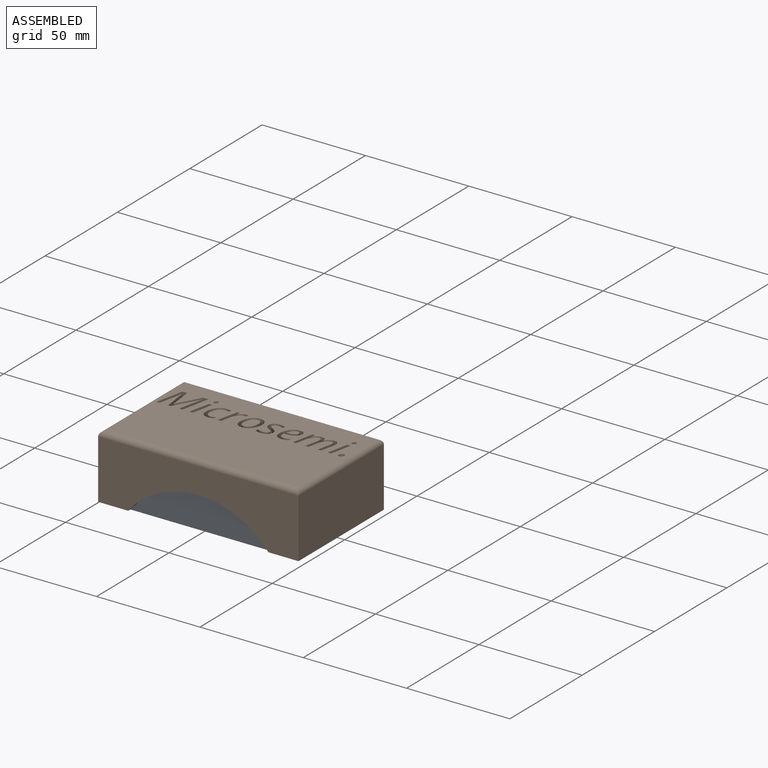
[diagram: assembled view]
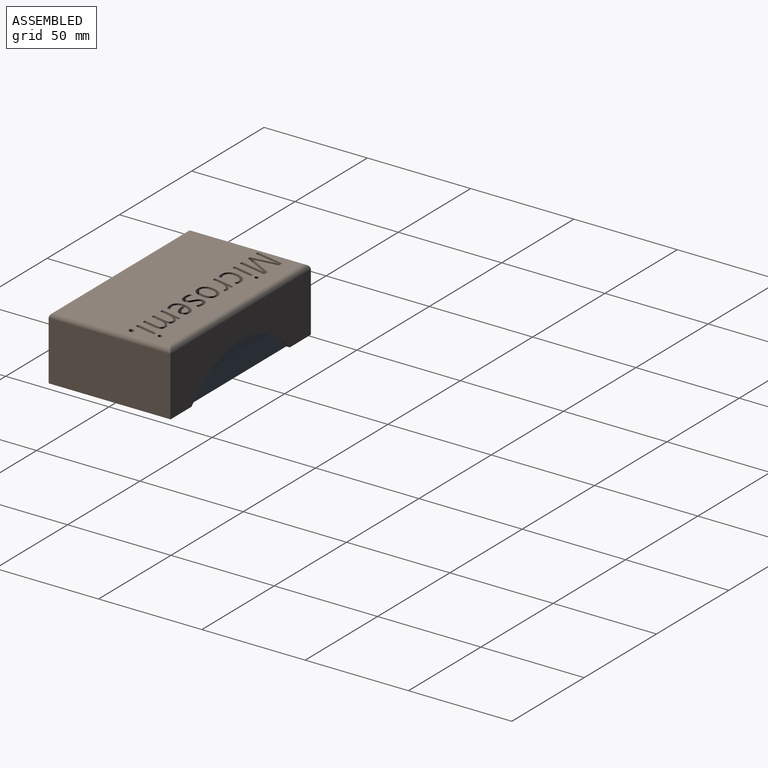
[diagram: assembled view, second angle]
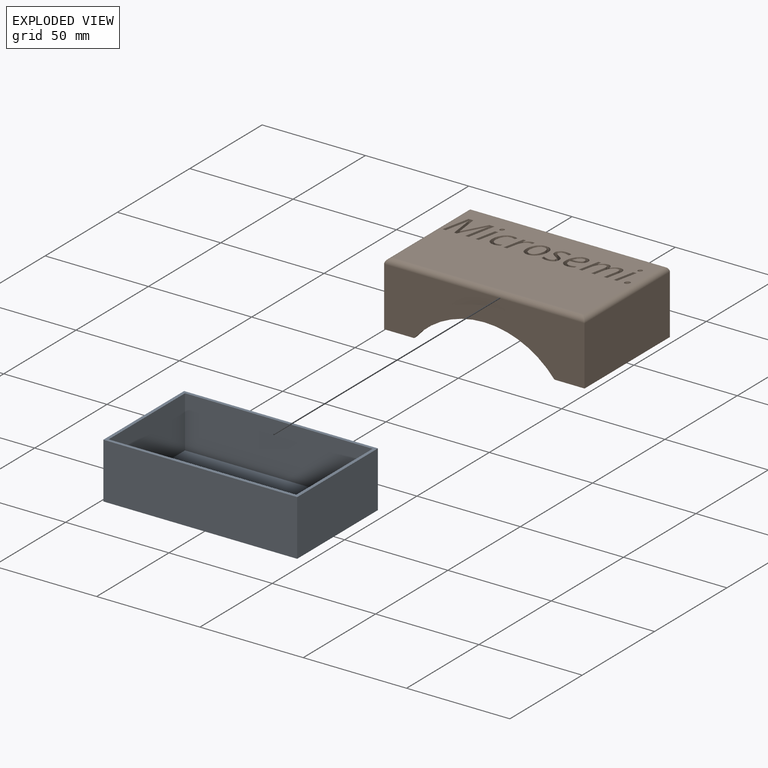
[diagram: exploded view]
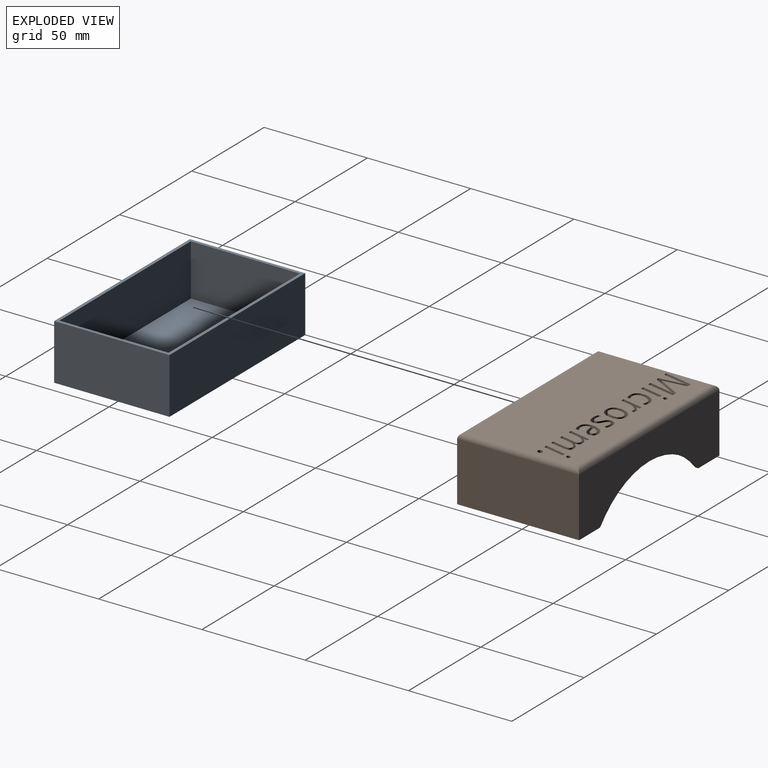
[diagram: exploded view, second angle]
ASSEMBLY  parts=2 mates=2
PART A: 11 faces, bbox 93.8x55.8x27 mm
  f0: plane 55.8x27mm, normal (1,0,0), area 1506.6mm2, adj f1,f3,f4,f9
  f1: plane 93.8x27mm, normal (0,1,0), area 2532.6mm2, adj f0,f2,f4,f9
  f2: plane 55.8x27mm, normal (-1,0,0), area 1506.6mm2, adj f1,f3,f4,f9
  f3: plane 93.8x27mm, normal (0,-1,0), area 2532.6mm2, adj f0,f2,f4,f9
  f4: plane 93.8x55.8mm, normal (0,0,-1), area 5234mm2, adj f0,f1,f2,f3
  f5: plane 90.8x25mm, normal (0,-1,0), area 2270mm2, adj f6,f8,f9,f10
  f6: plane 52.8x25mm, normal (-1,0,0), area 1320mm2, adj f5,f7,f9,f10
  f7: plane 90.8x25mm, normal (0,1,0), area 2270mm2, adj f6,f8,f9,f10
  f8: plane 52.8x25mm, normal (1,0,0), area 1320mm2, adj f5,f7,f9,f10
  f9: plane 93.8x55.8mm, normal (0,0,1), area 439.8mm2, adj f0,f1,f2,f3,f5,f6,f7,f8
  f10: plane 90.8x52.8mm, normal (0,0,1), area 4794.2mm2, adj f5,f6,f7,f8
PART B: 217 faces, bbox 97x59x31 mm
  f0: plane 97x28.5mm, normal (0,1,0), area 2009.2mm2, adj f1,f7,f8,f10,f15,f216
  f1: plane 59x14.56mm, normal (0,0,-1), area 127.7mm2, adj f0,f3,f5,f6,f8,f9,f215,f216
  f2: plane 92x54mm, normal (0,0,1), area 4579.1mm2, adj f12,f13,f14,f15,f17,f18,f19,f20
  f3: plane 94x27mm, normal (0,-1,0), area 1782.7mm2, adj f1,f4,f9,f10,f11,f216
  f4: plane 56x27mm, normal (-1,0,0), area 1512mm2, adj f3,f5,f10,f11
  f5: plane 94x27mm, normal (0,1,0), area 1782.7mm2, adj f1,f4,f9,f10,f11,f215
  f6: plane 97x28.5mm, normal (0,-1,0), area 2009.2mm2, adj f1,f7,f8,f10,f12,f215
  f7: plane 59x28.5mm, normal (1,0,0), area 1681.5mm2, adj f0,f6,f10,f13
  f8: plane 59x28.5mm, normal (-1,0,0), area 1681.5mm2, adj f0,f1,f6,f14
  f9: plane 56x27mm, normal (1,0,0), area 1512mm2, adj f1,f3,f5,f11
  f10: plane 59x14.56mm, normal (0,0,-1), area 127.7mm2, adj f0,f3,f4,f5,f6,f7,f215,f216
  f11: plane 94x56mm, normal (0,0,-1), area 5264mm2, adj f3,f4,f5,f9
  f12: cylinder r=2.5mm len=97mm, axis (-1,0,0), area 373.8mm2, adj f2,f6,f13,f14
  f13: cylinder r=2.5mm len=59mm, axis (0,-1,0), area 224.6mm2, adj f2,f7,f12,f15
  f14: cylinder r=2.5mm len=59mm, axis (0,1,0), area 224.6mm2, adj f2,f8,f12,f15
  f15: cylinder r=2.5mm len=97mm, axis (1,0,0), area 373.8mm2, adj f0,f2,f13,f14
  f16: plane 10.36x3.8mm, normal (0,0,1), area 16.5mm2, adj f17,f18,f19,f20
  f17: plane 10.36x3mm, normal (0.98,-0.21,0), area 31.8mm2, adj f2,f16,f18,f19
  f18: plane 3x1.59mm, normal (0,-1,0), area 4.8mm2, adj f2,f16,f17,f20
  f19: plane 3x1.59mm, normal (0,1,0), area 4.8mm2, adj f2,f16,f17,f20
  f20: plane 10.36x3mm, normal (-0.98,0.21,0), area 31.8mm2, adj f2,f16,f18,f19
  f21: plane 2.09x1.92mm, normal (0,0,1), area 3.2mm2, adj f22,f23,f24,f25,f26,f27,f28
  f22: extruded ~3x0.66mm, area 2.2mm2, adj f2,f21,f23,f26
  f23: extruded ~3x0.62mm, area 2mm2, adj f2,f21,f22,f24
  f24: extruded ~3x0.73mm, area 2.5mm2, adj f2,f21,f23,f25
  f25: extruded ~3x0.88mm, area 2.9mm2, adj f2,f21,f24,f27
  f26: extruded ~3x0.87mm, area 2.8mm2, adj f2,f21,f22,f28
  f27: extruded ~3x0.85mm, area 4.1mm2, adj f2,f21,f25,f28
  f28: extruded ~3x0.78mm, area 2.6mm2, adj f2,f21,f26,f27
  f29: plane 10.74x7.94mm, normal (0,0,1), area 27.4mm2, adj f30,f31,f32,f33,f34,f35,f36,f37
  f30: extruded ~3x2.61mm, area 8.1mm2, adj f2,f29,f31,f44
  f31: plane 3x1.35mm, normal (1,0,0), area 4.1mm2, adj f2,f29,f30,f32
  f32: extruded ~3x1.19mm, area 3.8mm2, adj f2,f29,f31,f33
  f33: extruded ~3x1.29mm, area 3.9mm2, adj f2,f29,f32,f34
  f34: extruded ~3x1.73mm, area 5.7mm2, adj f2,f29,f33,f35
  f35: extruded ~3x1.88mm, area 6.1mm2, adj f2,f29,f34,f36
  f36: extruded ~3x2.8mm, area 8.6mm2, adj f2,f29,f35,f37
  f37: extruded ~3x2.01mm, area 7.4mm2, adj f2,f29,f36,f38
  f38: extruded ~3x1.93mm, area 6.3mm2, adj f2,f29,f37,f39
  f39: extruded ~3x2.07mm, area 6.4mm2, adj f2,f29,f38,f40
  f40: plane 3x1.33mm, normal (0.95,-0.32,0), area 4.2mm2, adj f2,f29,f39,f41
  f41: extruded ~3x2.53mm, area 7.8mm2, adj f2,f29,f40,f42
  f42: extruded ~3x2.78mm, area 8.9mm2, adj f2,f29,f41,f43
  f43: extruded ~3x2.49mm, area 9.6mm2, adj f2,f29,f42,f45
  f44: extruded ~3x2.85mm, area 9.3mm2, adj f2,f29,f30,f46
  f45: extruded ~3.49x3mm, area 10.7mm2, adj f2,f29,f43,f46
  f46: extruded ~3x2.86mm, area 9.3mm2, adj f2,f29,f44,f45
  f47: plane 10.55x7.69mm, normal (0,0,1), area 22.3mm2, adj f48,f49,f50,f51,f52,f53,f54,f55
  f48: extruded ~3x1.08mm, area 3.3mm2, adj f2,f47,f49,f60
  f49: extruded ~3x0.93mm, area 3.3mm2, adj f2,f47,f48,f50
  f50: extruded ~3x1.29mm, area 5.1mm2, adj f2,f47,f49,f51
  f51: plane 3x0.1mm, normal (0,1,0), area 0.3mm2, adj f2,f47,f50,f52
  f52: plane 3x1.92mm, normal (0.99,-0.11,0), area 5.8mm2, adj f2,f47,f51,f53
  f53: plane 3x1.31mm, normal (0,1,0), area 3.9mm2, adj f2,f47,f52,f54
  f54: plane 10.36x3mm, normal (-0.98,0.21,0), area 31.8mm2, adj f2,f47,f53,f55
  f55: plane 3x1.59mm, normal (0,-1,0), area 4.8mm2, adj f2,f47,f54,f56
  f56: plane 4.75x3mm, normal (0.98,-0.21,0), area 14.6mm2, adj f2,f47,f55,f57
  f57: extruded ~3x2.24mm, area 7.2mm2, adj f2,f47,f56,f58
  f58: extruded ~3x1.57mm, area 6.2mm2, adj f2,f47,f57,f59
  f59: extruded ~3x1.61mm, area 5.2mm2, adj f2,f47,f58,f61
  f60: extruded ~3x1.13mm, area 3.4mm2, adj f2,f47,f48,f62
  f61: extruded ~3x1mm, area 3mm2, adj f2,f47,f59,f62
  f62: plane 3x1.42mm, normal (0.97,-0.23,0), area 4.4mm2, adj f2,f47,f60,f61
  f63: plane 10.74x7.83mm, normal (0,0,1), area 30.7mm2, adj f64,f65,f66,f67,f68,f69,f70,f71
  f64: extruded ~3x1.05mm, area 3.3mm2, adj f2,f63,f65,f86
  f65: extruded ~3x0.87mm, area 3.3mm2, adj f2,f63,f64,f66
  f66: extruded ~3x1.45mm, area 5.3mm2, adj f2,f63,f65,f67
  f67: extruded ~3x1.39mm, area 5.1mm2, adj f2,f63,f66,f68
  f68: extruded ~3x0.91mm, area 3mm2, adj f2,f63,f67,f69
  f69: extruded ~3x1.06mm, area 3.7mm2, adj f2,f63,f68,f70
  f70: extruded ~3x1.38mm, area 4.4mm2, adj f2,f63,f69,f71
  f71: extruded ~3x2.08mm, area 6.4mm2, adj f2,f63,f70,f72
  f72: plane 3x0.53mm, normal (-0.41,-0.91,0), area 1.7mm2, adj f2,f63,f71,f73
  f73: plane 3x1.29mm, normal (0.93,-0.37,0), area 4.2mm2, adj f2,f63,f72,f74
  f74: extruded ~3.12x3mm, area 9.7mm2, adj f2,f63,f73,f75
  f75: extruded ~3x2.51mm, area 8.1mm2, adj f2,f63,f74,f76
  f76: extruded ~3x2.1mm, area 7.2mm2, adj f2,f63,f75,f77
  f77: extruded ~3x1.57mm, area 5mm2, adj f2,f63,f76,f78
  f78: extruded ~3x1.74mm, area 6.6mm2, adj f2,f63,f77,f79
  f79: extruded ~3x1.43mm, area 5.3mm2, adj f2,f63,f78,f80
  f80: extruded ~3x0.91mm, area 3mm2, adj f2,f63,f79,f81
  f81: extruded ~3x1.21mm, area 4.2mm2, adj f2,f63,f80,f82
  f82: extruded ~3x1.79mm, area 5.7mm2, adj f2,f63,f81,f83
  f83: extruded ~3x1.42mm, area 4.3mm2, adj f2,f63,f82,f84
  f84: extruded ~3x1.43mm, area 4.7mm2, adj f2,f63,f83,f85
  f85: plane 3x1.49mm, normal (-1,0,0), area 4.5mm2, adj f2,f63,f84,f87
  f86: extruded ~3x2.3mm, area 7.9mm2, adj f2,f63,f64,f88
  f87: extruded ~3x2.88mm, area 9mm2, adj f2,f63,f85,f88
  f88: extruded ~3x2.94mm, area 9.3mm2, adj f2,f63,f86,f87
  f89: plane 15.24x10.55mm, normal (0,0,1), area 59.9mm2, adj f90,f91,f92,f93,f94,f95,f96,f97
  f90: plane 3x1.59mm, normal (0,-1,0), area 4.8mm2, adj f2,f89,f91,f121
  f91: plane 4.73x3mm, normal (0.98,-0.21,0), area 14.5mm2, adj f2,f89,f90,f92
  f92: extruded ~3x2.39mm, area 7.6mm2, adj f2,f89,f91,f93
  f93: extruded ~3x1.56mm, area 6.1mm2, adj f2,f89,f92,f94
  f94: extruded ~3x1.51mm, area 4.9mm2, adj f2,f89,f93,f95
  f95: extruded ~3x1.03mm, area 3.4mm2, adj f2,f89,f94,f96
  f96: extruded ~3x0.94mm, area 3.1mm2, adj f2,f89,f95,f97
  f97: extruded ~3x1.38mm, area 4.2mm2, adj f2,f89,f96,f98
  f98: plane 6.54x3mm, normal (-0.98,0.21,0), area 20.1mm2, adj f2,f89,f97,f99
  f99: plane 3x1.61mm, normal (0,-1,0), area 4.8mm2, adj f2,f89,f98,f100
  f100: plane 6.35x3mm, normal (0.98,-0.21,0), area 19.5mm2, adj f2,f89,f99,f101
  f101: extruded ~3x1.68mm, area 5.1mm2, adj f2,f89,f100,f102
  f102: extruded ~3x1.87mm, area 6.1mm2, adj f2,f89,f101,f103
  f103: extruded ~3x1.86mm, area 6.1mm2, adj f2,f89,f102,f104
  f104: extruded ~3x1.85mm, area 5.9mm2, adj f2,f89,f103,f105
  f105: extruded ~3x1.75mm, area 7.4mm2, adj f2,f89,f104,f106
  f106: plane 3x0.08mm, normal (0,1,0), area 0.2mm2, adj f2,f89,f105,f107
  f107: extruded ~3x1.71mm, area 5.6mm2, adj f2,f89,f106,f108
  f108: extruded ~3x1.64mm, area 5.4mm2, adj f2,f89,f107,f109
  f109: extruded ~3x1.69mm, area 5.3mm2, adj f2,f89,f108,f110
  f110: extruded ~3x1.64mm, area 6.9mm2, adj f2,f89,f109,f111
  f111: plane 3x0.1mm, normal (0,1,0), area 0.3mm2, adj f2,f89,f110,f112
  f112: plane 3x1.92mm, normal (0.99,-0.11,0), area 5.8mm2, adj f2,f89,f111,f113
  f113: plane 3x1.31mm, normal (0,1,0), area 3.9mm2, adj f2,f89,f112,f114
  f114: plane 10.36x3mm, normal (-0.98,0.21,0), area 31.8mm2, adj f2,f89,f113,f115
  f115: plane 3x1.59mm, normal (0,-1,0), area 4.8mm2, adj f2,f89,f114,f116
  f116: plane 4.49x3mm, normal (0.98,-0.21,0), area 13.8mm2, adj f2,f89,f115,f117
  f117: extruded ~3x2.54mm, area 8.1mm2, adj f2,f89,f116,f118
  f118: extruded ~3x1.62mm, area 6.3mm2, adj f2,f89,f117,f119
  f119: extruded ~3x1.55mm, area 5mm2, adj f2,f89,f118,f120
  f120: extruded ~3x1mm, area 3.3mm2, adj f2,f89,f119,f122
  f121: plane 6.54x3mm, normal (-0.98,0.21,0), area 20.1mm2, adj f2,f89,f90,f123
  f122: extruded ~3x1.03mm, area 3.3mm2, adj f2,f89,f120,f123
  f123: extruded ~3x1.27mm, area 3.9mm2, adj f2,f89,f121,f122
  f124: plane 10.36x3.8mm, normal (0,0,1), area 16.5mm2, adj f125,f126,f127,f128
  f125: plane 10.36x3mm, normal (0.98,-0.21,0), area 31.8mm2, adj f2,f124,f126,f127
  f126: plane 3x1.59mm, normal (0,-1,0), area 4.8mm2, adj f2,f124,f125,f128
  f127: plane 3x1.59mm, normal (0,1,0), area 4.8mm2, adj f2,f124,f125,f128
  f128: plane 10.36x3mm, normal (-0.98,0.21,0), area 31.8mm2, adj f2,f124,f126,f127
  f129: plane 2.09x1.92mm, normal (0,0,1), area 3.2mm2, adj f130,f131,f132,f133,f134,f135,f136
  f130: extruded ~3x0.66mm, area 2.2mm2, adj f2,f129,f131,f134
  f131: extruded ~3x0.62mm, area 2mm2, adj f2,f129,f130,f132
  f132: extruded ~3x0.73mm, area 2.5mm2, adj f2,f129,f131,f133
  f133: extruded ~3x0.88mm, area 2.9mm2, adj f2,f129,f132,f135
  f134: extruded ~3x0.87mm, area 2.8mm2, adj f2,f129,f130,f136
  f135: extruded ~3x0.85mm, area 4.1mm2, adj f2,f129,f133,f136
  f136: extruded ~3x0.78mm, area 2.6mm2, adj f2,f129,f134,f135
  f137: plane 10.74x8.04mm, normal (0,0,1), area 38.3mm2, adj f138,f139,f140,f141,f142,f143,f144,f145
  f138: extruded ~3x1.08mm, area 3.5mm2, adj f137,f139,f157,f163
  f139: extruded ~3x0.83mm, area 2.8mm2, adj f137,f138,f140,f163
  f140: extruded ~3x1.63mm, area 6.3mm2, adj f137,f139,f141,f163
  f141: extruded ~3.3x3mm, area 10.1mm2, adj f137,f140,f158,f163
  f142: extruded ~3x1.5mm, area 4.5mm2, adj f2,f137,f143,f160
  f143: extruded ~3x1.57mm, area 5mm2, adj f2,f137,f142,f144
  f144: plane 3x1.38mm, normal (1,0,0), area 4.1mm2, adj f2,f137,f143,f145
  f145: extruded ~3x1.56mm, area 5.1mm2, adj f2,f137,f144,f146
  f146: extruded ~3x1.23mm, area 3.7mm2, adj f2,f137,f145,f147
  f147: extruded ~3x1.8mm, area 6mm2, adj f2,f137,f146,f148
  f148: extruded ~3x1.93mm, area 6.2mm2, adj f2,f137,f147,f149
  f149: plane 3x0.76mm, normal (1,-0.05,0), area 2.3mm2, adj f2,f137,f148,f150
  f150: plane 3x0.31mm, normal (0,-1,0), area 0.9mm2, adj f2,f137,f149,f151
  f151: extruded ~4.49x3mm, area 14mm2, adj f2,f137,f150,f152
  f152: extruded ~3x2.67mm, area 9.8mm2, adj f2,f137,f151,f153
  f153: extruded ~3x1.75mm, area 5.9mm2, adj f2,f137,f152,f154
  f154: extruded ~3x2.18mm, area 6.9mm2, adj f2,f137,f153,f155
  f155: extruded ~3x2.56mm, area 8.3mm2, adj f2,f137,f154,f156
  f156: extruded ~3x2.54mm, area 9.6mm2, adj f2,f137,f155,f161
  f157: extruded ~3x1.83mm, area 6.3mm2, adj f137,f138,f159,f163
  f158: plane 3x0.12mm, normal (0,1,0), area 0.3mm2, adj f137,f141,f159,f163
  f159: extruded ~3x2.47mm, area 8.5mm2, adj f137,f157,f158,f163
  f160: extruded ~3x2.73mm, area 9mm2, adj f2,f137,f142,f162
  f161: extruded ~3.41x3mm, area 10.5mm2, adj f2,f137,f156,f162
  f162: extruded ~3x2.86mm, area 9.3mm2, adj f2,f137,f160,f161
  f163: plane 4.57x3.36mm, normal (0,0,1), area 10.3mm2, adj f138,f139,f140,f141,f157,f158,f159
  f164: plane 10.64x9.03mm, normal (0,0,1), area 39.8mm2, adj f165,f166,f167,f168,f169,f170,f171,f172
  f165: extruded ~3x2.91mm, area 8.9mm2, adj f164,f166,f179,f185
  f166: extruded ~3x1.96mm, area 7mm2, adj f164,f165,f167,f185
  f167: extruded ~3x1.77mm, area 5.8mm2, adj f164,f166,f168,f185
  f168: extruded ~3x1.73mm, area 5.7mm2, adj f164,f167,f169,f185
  f169: extruded ~3x1.92mm, area 6.2mm2, adj f164,f168,f170,f185
  f170: extruded ~3x2.76mm, area 8.4mm2, adj f164,f169,f171,f185
  f171: extruded ~3x1.94mm, area 7mm2, adj f164,f170,f180,f185
  f172: extruded ~3x2.6mm, area 8.3mm2, adj f2,f164,f173,f182
  f173: extruded ~3x2.43mm, area 9.3mm2, adj f2,f164,f172,f174
  f174: extruded ~3.38x3mm, area 10.4mm2, adj f2,f164,f173,f175
  f175: extruded ~3x2.92mm, area 9.5mm2, adj f2,f164,f174,f176
  f176: extruded ~3x2.85mm, area 9.4mm2, adj f2,f164,f175,f177
  f177: extruded ~3x2.63mm, area 8.4mm2, adj f2,f164,f176,f178
  f178: extruded ~3x2.44mm, area 9.3mm2, adj f2,f164,f177,f183
  f179: extruded ~3x1.76mm, area 5.7mm2, adj f164,f165,f181,f185
  f180: extruded ~3x1.85mm, area 6.1mm2, adj f164,f171,f181,f185
  f181: extruded ~3x1.6mm, area 5.4mm2, adj f164,f179,f180,f185
  f182: extruded ~3x2.84mm, area 9.3mm2, adj f2,f164,f172,f184
  f183: extruded ~3.35x3mm, area 10.3mm2, adj f2,f164,f178,f184
  f184: extruded ~3x2.93mm, area 9.6mm2, adj f2,f164,f182,f183
  f185: plane 8x5.76mm, normal (0,0,1), area 36.3mm2, adj f165,f166,f167,f168,f169,f170,f171,f179
  f186: plane 2.56x2.34mm, normal (0,0,1), area 4.8mm2, adj f187,f188,f189,f190,f191,f192,f193,f194
  f187: extruded ~3x0.73mm, area 2.4mm2, adj f2,f186,f188,f192
  f188: extruded ~3x0.69mm, area 2.3mm2, adj f2,f186,f187,f189
  f189: extruded ~3x1.02mm, area 3.5mm2, adj f2,f186,f188,f190
  f190: extruded ~3x1.12mm, area 3.6mm2, adj f2,f186,f189,f191
  f191: extruded ~3x0.75mm, area 2.4mm2, adj f2,f186,f190,f193
  f192: extruded ~3x1.16mm, area 3.7mm2, adj f2,f186,f187,f194
  f193: extruded ~3x0.66mm, area 2.2mm2, adj f2,f186,f191,f194
  f194: extruded ~3x1.05mm, area 3.5mm2, adj f2,f186,f192,f193
  f195: plane 15.46x13.82mm, normal (0,0,1), area 79.7mm2, adj f196,f197,f198,f199,f200,f201,f202,f203
  f196: plane 3x1.24mm, normal (0,-1,0), area 3.7mm2, adj f2,f195,f197,f212
  f197: plane 12.27x6.78mm, normal (0.88,-0.48,0), area 42.1mm2, adj f2,f195,f196,f198
  f198: plane 3x0.05mm, normal (0,-1,0), area 0.2mm2, adj f2,f195,f197,f199
  f199: extruded ~3.71x3mm, area 11.4mm2, adj f2,f195,f198,f200
  f200: extruded ~8.56x3mm, area 26.3mm2, adj f2,f195,f199,f201
  f201: plane 3x1.65mm, normal (0,-1,0), area 4.9mm2, adj f2,f195,f200,f202
  f202: plane 13.82x3mm, normal (0.98,-0.2,0), area 42.3mm2, adj f2,f195,f201,f203
  f203: plane 3x2.51mm, normal (0,1,0), area 7.5mm2, adj f2,f195,f202,f204
  f204: plane 11.38x6.23mm, normal (-0.88,0.48,0), area 38.9mm2, adj f2,f195,f203,f205
  f205: plane 3x0.08mm, normal (0,1,0), area 0.3mm2, adj f2,f195,f204,f206
  f206: plane 11.38x3mm, normal (0.99,0.12,0), area 34.4mm2, adj f2,f195,f205,f207
  f207: plane 3x2.31mm, normal (0,1,0), area 6.9mm2, adj f2,f195,f206,f208
  f208: plane 13.82x3mm, normal (-0.98,0.21,0), area 42.4mm2, adj f2,f195,f207,f209
  f209: plane 3x1.53mm, normal (0,-1,0), area 4.6mm2, adj f2,f195,f208,f210
  f210: plane 8.5x3mm, normal (0.98,-0.21,0), area 26.1mm2, adj f2,f195,f209,f211
  f211: extruded ~3x1.89mm, area 5.8mm2, adj f2,f195,f210,f213
  f212: plane 12.25x3mm, normal (-0.99,-0.13,0), area 37.1mm2, adj f2,f195,f196,f214
  f213: extruded ~3x1.87mm, area 5.7mm2, adj f2,f195,f211,f214
  f214: plane 3x0.08mm, normal (0,-1,0), area 0.2mm2, adj f2,f195,f212,f213
  f215: cylinder r=44mm len=67.88mm, axis (0,1,0), area 116.3mm2, adj f1,f5,f6,f10
  f216: cylinder r=44mm len=67.88mm, axis (0,1,0), area 116.3mm2, adj f0,f1,f3,f10
PLACE A t=(0.15,-0.66,-11.5)mm fixed
PLACE B rot(axis=(0,0,1),180deg) t=(0.25,-0.56,-13.5)mm
MATE planar B.f3 <-> A.f3  axis (0,1,0) through (0.25,-28.56,2.97)mm
MATE planar B.f4 <-> A.f2  axis (1,0,0) through (-46.75,-0.56,0)mm
